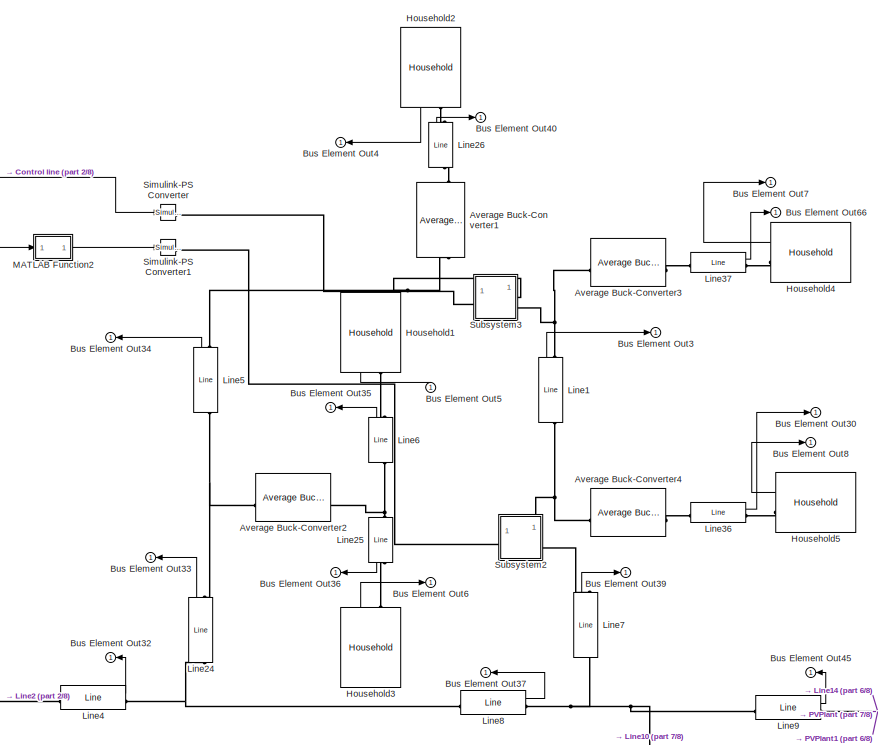
[diagram: root canvas - part 1/8, top center region]
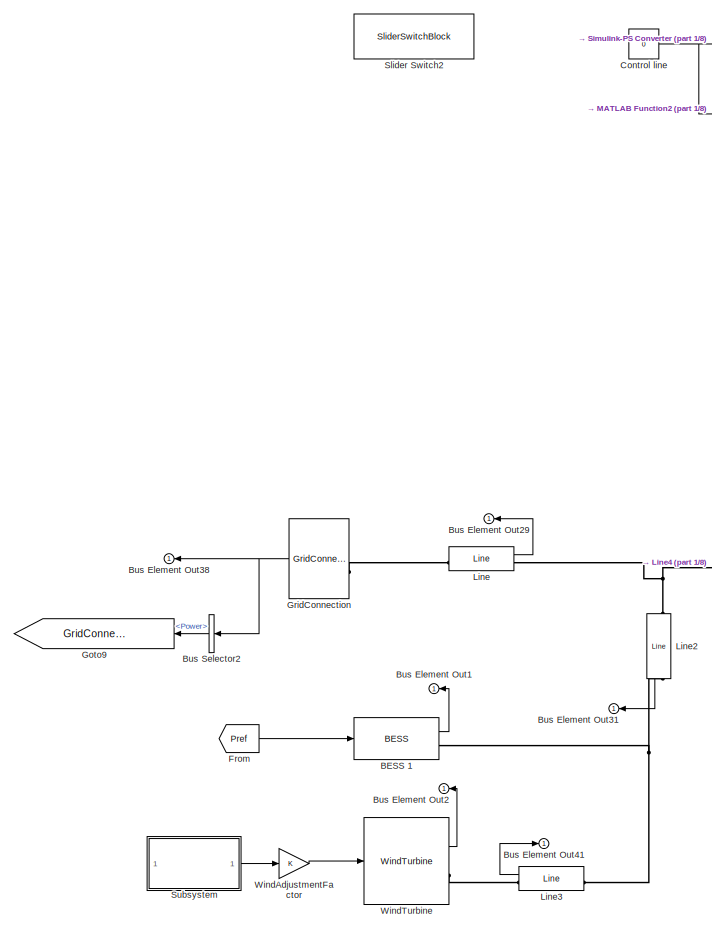
[diagram: root canvas - part 2/8, central region]
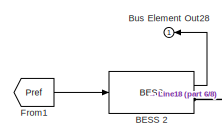
[diagram: root canvas - part 3/8, top right region]
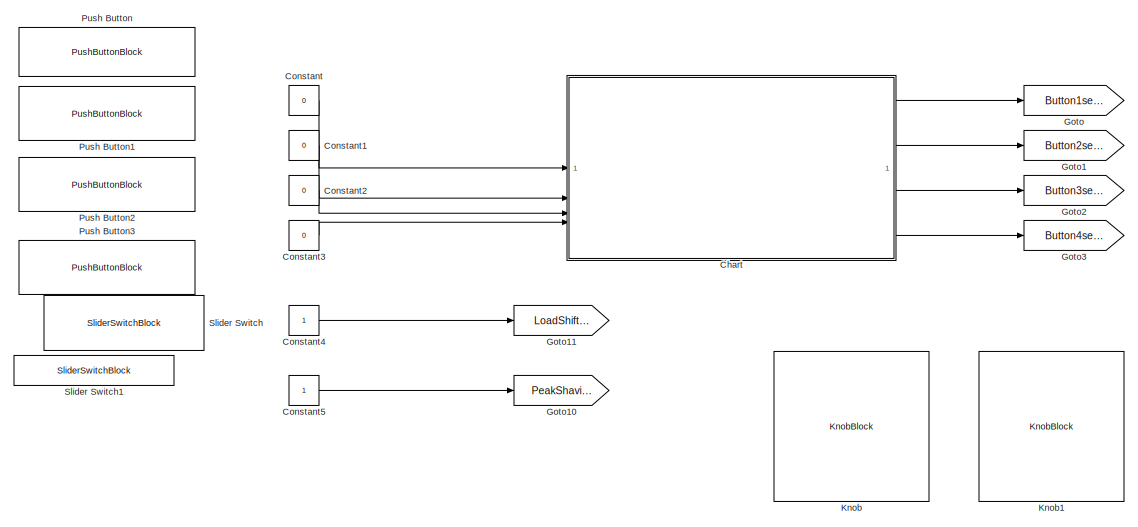
[diagram: root canvas - part 4/8, top left region]
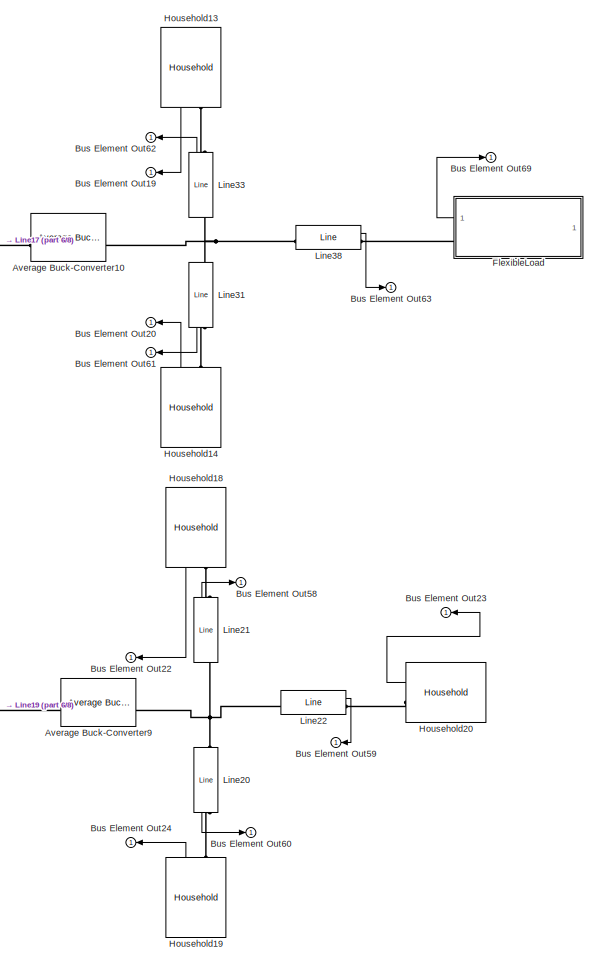
[diagram: root canvas - part 5/8, middle right region]
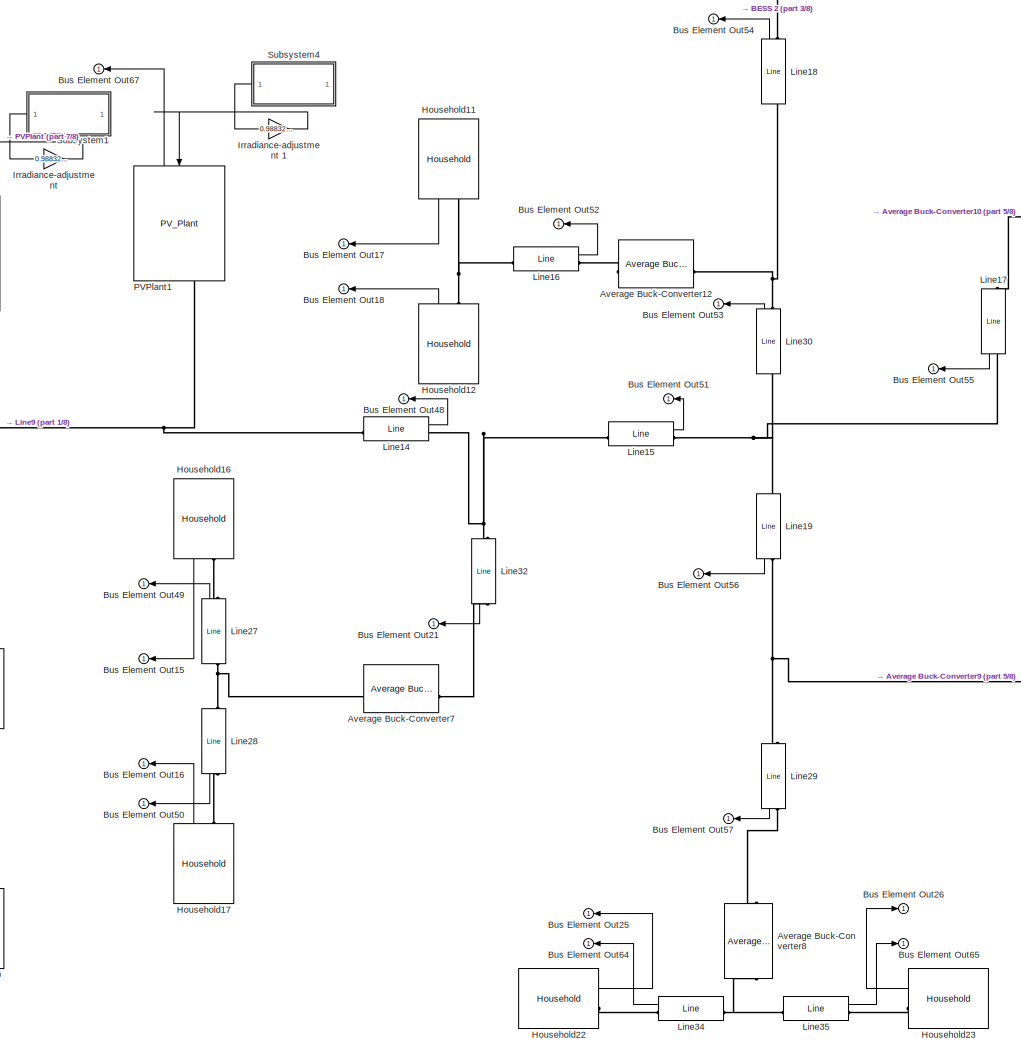
[diagram: root canvas - part 6/8, middle right region]
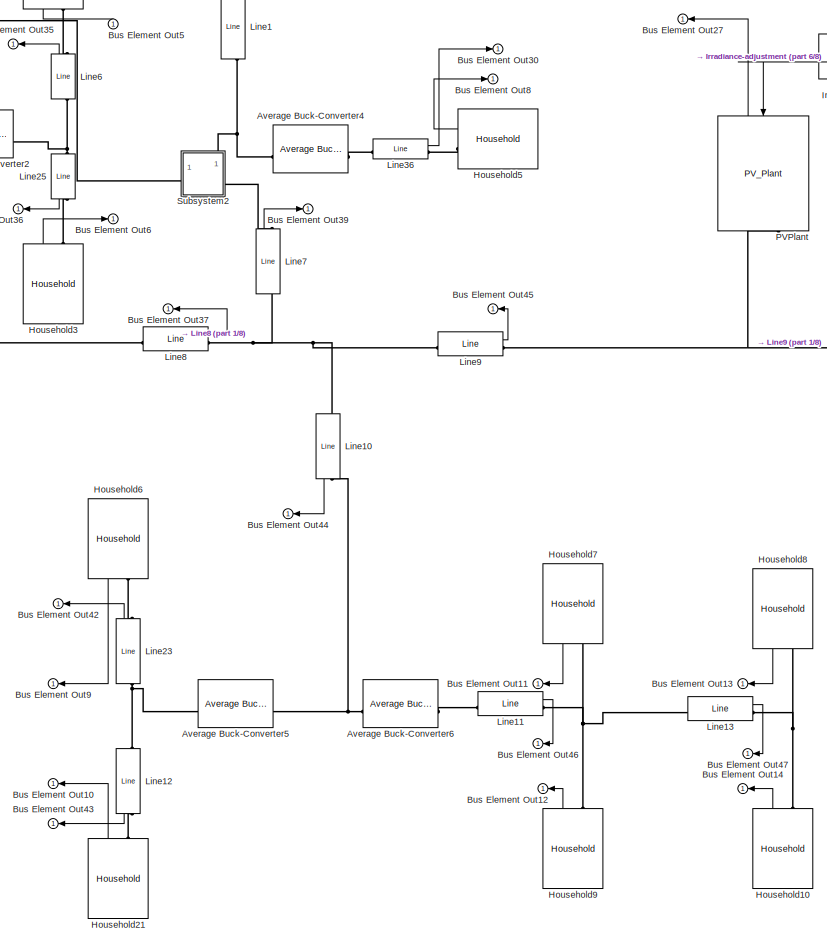
[diagram: root canvas - part 7/8, central region]
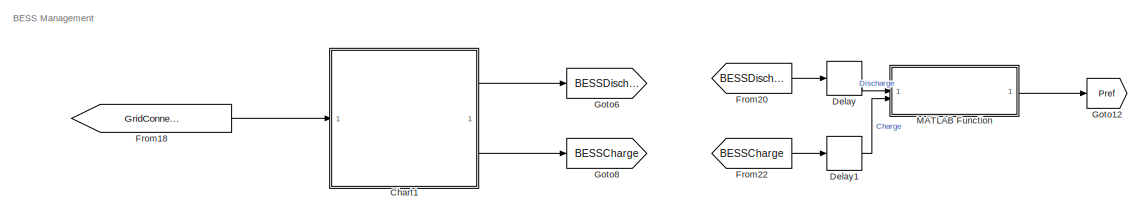
[diagram: root canvas - part 8/8, bottom center region]
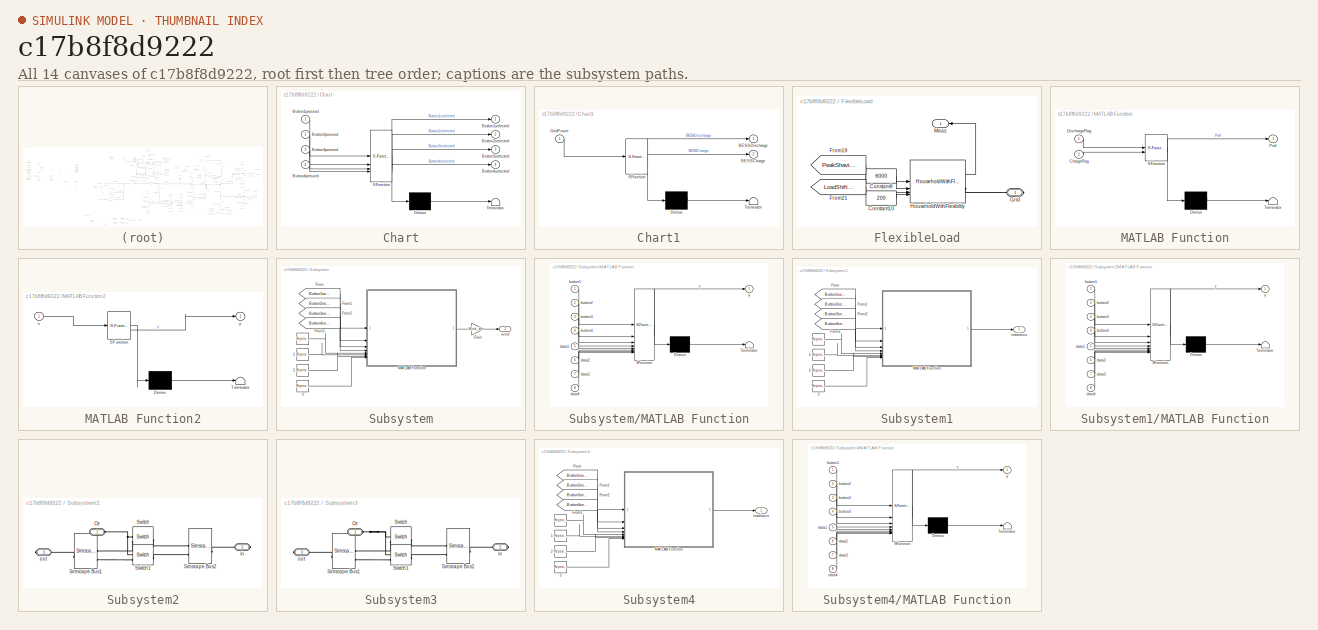
[diagram: thumbnail index - all 14 canvases of the model, root first then tree order]
MODEL slx_c17b8f8d9222
KIND model
CONFIG AbsTol = auto
CONFIG EnableMultiTasking = off
CONFIG FixedStep = 0.01
CONFIG MaxStep = auto
CONFIG MinStep = auto
CONFIG RelTol = 1e-3
CONFIG SampleTimeConstraint = Unconstrained
CONFIG SolverName = FixedStepAuto
CONFIG StartTime = 0.0
CONFIG StopTime = 48*2
BLOCK [Reference] Average Buck-Converter1  REF=DC_GRIDSIM_LIB/Average Buck-Converter
  NameLocation = right
  SourceBlock = DC_GRIDSIM_LIB/Average Buck-Converter
  SourceProductName = DC GRIDSIM Library
BLOCK [Reference] Average Buck-Converter10  REF=DC_GRIDSIM_LIB/Average Buck-Converter
  SourceBlock = DC_GRIDSIM_LIB/Average Buck-Converter
  SourceProductName = DC GRIDSIM Library
BLOCK [Reference] Average Buck-Converter12  REF=DC_GRIDSIM_LIB/Average Buck-Converter
  NameLocation = top
  SourceBlock = DC_GRIDSIM_LIB/Average Buck-Converter
  SourceProductName = DC GRIDSIM Library
BLOCK [Reference] Average Buck-Converter2  REF=DC_GRIDSIM_LIB/Average Buck-Converter
  SourceBlock = DC_GRIDSIM_LIB/Average Buck-Converter
  SourceProductName = DC GRIDSIM Library
BLOCK [Reference] Average Buck-Converter3  REF=DC_GRIDSIM_LIB/Average Buck-Converter
  SourceBlock = DC_GRIDSIM_LIB/Average Buck-Converter
  SourceProductName = DC GRIDSIM Library
BLOCK [Reference] Average Buck-Converter4  REF=DC_GRIDSIM_LIB/Average Buck-Converter
  SourceBlock = DC_GRIDSIM_LIB/Average Buck-Converter
  SourceProductName = DC GRIDSIM Library
BLOCK [Reference] Average Buck-Converter5  REF=DC_GRIDSIM_LIB/Average Buck-Converter
  NameLocation = top
  SourceBlock = DC_GRIDSIM_LIB/Average Buck-Converter
  SourceProductName = DC GRIDSIM Library
BLOCK [Reference] Average Buck-Converter6  REF=DC_GRIDSIM_LIB/Average Buck-Converter
  SourceBlock = DC_GRIDSIM_LIB/Average Buck-Converter
  SourceProductName = DC GRIDSIM Library
BLOCK [Reference] Average Buck-Converter7  REF=DC_GRIDSIM_LIB/Average Buck-Converter
  NameLocation = top
  SourceBlock = DC_GRIDSIM_LIB/Average Buck-Converter
  SourceProductName = DC GRIDSIM Library
BLOCK [Reference] Average Buck-Converter8  REF=DC_GRIDSIM_LIB/Average Buck-Converter
  NameLocation = left
  SourceBlock = DC_GRIDSIM_LIB/Average Buck-Converter
  SourceProductName = DC GRIDSIM Library
BLOCK [Reference] Average Buck-Converter9  REF=DC_GRIDSIM_LIB/Average Buck-Converter
  SourceBlock = DC_GRIDSIM_LIB/Average Buck-Converter
  SourceProductName = DC GRIDSIM Library
BLOCK [Reference] BESS 1  REF=DC_GRIDSIM_LIB/BESS
  SourceBlock = DC_GRIDSIM_LIB/BESS
  SourceProductName = DC GRIDSIM Library
BLOCK [Reference] BESS 2  REF=DC_GRIDSIM_LIB/BESS
  SourceBlock = DC_GRIDSIM_LIB/BESS
  SourceProductName = DC GRIDSIM Library
BLOCK [Outport] Bus Element Out1
  NameLocation = top
BLOCK [Outport] Bus Element Out10
  NameLocation = top
BLOCK [Outport] Bus Element Out11
  NameLocation = top
BLOCK [Outport] Bus Element Out12
  NameLocation = top
BLOCK [Outport] Bus Element Out13
  NameLocation = top
BLOCK [Outport] Bus Element Out14
  NameLocation = top
BLOCK [Outport] Bus Element Out15
  NameLocation = top
BLOCK [Outport] Bus Element Out16
  NameLocation = top
BLOCK [Outport] Bus Element Out17
  NameLocation = top
BLOCK [Outport] Bus Element Out18
  NameLocation = top
BLOCK [Outport] Bus Element Out19
  NameLocation = top
BLOCK [Outport] Bus Element Out2
  NameLocation = top
BLOCK [Outport] Bus Element Out20
  NameLocation = top
BLOCK [Outport] Bus Element Out21
  NameLocation = top
BLOCK [Outport] Bus Element Out22
  NameLocation = top
BLOCK [Outport] Bus Element Out23
  NameLocation = top
BLOCK [Outport] Bus Element Out24
  NameLocation = top
BLOCK [Outport] Bus Element Out25
  NameLocation = top
BLOCK [Outport] Bus Element Out26
BLOCK [Outport] Bus Element Out27
  NameLocation = top
BLOCK [Outport] Bus Element Out28
  NameLocation = top
BLOCK [Outport] Bus Element Out29
  NameLocation = top
BLOCK [Outport] Bus Element Out3
BLOCK [Outport] Bus Element Out30
BLOCK [Outport] Bus Element Out31
  NameLocation = top
BLOCK [Outport] Bus Element Out32
  NameLocation = top
BLOCK [Outport] Bus Element Out33
  NameLocation = top
BLOCK [Outport] Bus Element Out34
  NameLocation = top
BLOCK [Outport] Bus Element Out35
  NameLocation = top
BLOCK [Outport] Bus Element Out36
  NameLocation = top
BLOCK [Outport] Bus Element Out37
  NameLocation = top
BLOCK [Outport] Bus Element Out38
  NameLocation = top
BLOCK [Outport] Bus Element Out39
BLOCK [Outport] Bus Element Out4
  NameLocation = top
BLOCK [Outport] Bus Element Out40
BLOCK [Outport] Bus Element Out41
BLOCK [Outport] Bus Element Out42
  NameLocation = top
BLOCK [Outport] Bus Element Out43
  NameLocation = top
BLOCK [Outport] Bus Element Out44
  NameLocation = top
BLOCK [Outport] Bus Element Out45
  NameLocation = top
BLOCK [Outport] Bus Element Out46
  NameLocation = top
BLOCK [Outport] Bus Element Out47
  NameLocation = top
BLOCK [Outport] Bus Element Out48
  NameLocation = top
BLOCK [Outport] Bus Element Out49
  NameLocation = top
BLOCK [Outport] Bus Element Out5
BLOCK [Outport] Bus Element Out50
  NameLocation = top
BLOCK [Outport] Bus Element Out51
  NameLocation = top
BLOCK [Outport] Bus Element Out52
  NameLocation = top
BLOCK [Outport] Bus Element Out53
  NameLocation = top
BLOCK [Outport] Bus Element Out54
  NameLocation = top
BLOCK [Outport] Bus Element Out55
  NameLocation = top
BLOCK [Outport] Bus Element Out56
  NameLocation = top
BLOCK [Outport] Bus Element Out57
  NameLocation = top
BLOCK [Outport] Bus Element Out58
BLOCK [Outport] Bus Element Out59
  NameLocation = top
BLOCK [Outport] Bus Element Out6
BLOCK [Outport] Bus Element Out60
BLOCK [Outport] Bus Element Out61
  NameLocation = top
BLOCK [Outport] Bus Element Out62
  NameLocation = top
BLOCK [Outport] Bus Element Out63
BLOCK [Outport] Bus Element Out64
  NameLocation = top
BLOCK [Outport] Bus Element Out65
BLOCK [Outport] Bus Element Out66
BLOCK [Outport] Bus Element Out67
  NameLocation = top
BLOCK [Outport] Bus Element Out69
BLOCK [Outport] Bus Element Out7
BLOCK [Outport] Bus Element Out8
BLOCK [Outport] Bus Element Out9
  NameLocation = top
BLOCK [BusSelector] Bus Selector2
  NameLocation = top
  OutputSignals = Power
BLOCK [SubSystem] Chart
  ErrorFcn = Stateflow.Translate.translate
  PermitHierarchicalResolution = ExplicitOnly
  SFBlockType = Chart
  TreatAsAtomicUnit = on
BLOCK [Outport] Chart/ Button1selected
BLOCK [Outport] Chart/ Button2selected
  Port = 2
BLOCK [Outport] Chart/ Button3selected
  Port = 3
BLOCK [Outport] Chart/ Button4selected
  Port = 4
BLOCK [Demux] Chart/ Demux 
  Outputs = 1
BLOCK [S-Function] Chart/ SFunction 
  EnableBusSupport = on
  FunctionName = sf_sfun
  PortCounts = [4 5]
  SFcnIsStateOwnerBlock = off
  SFunctionDeploymentMode = off
  Tag = Stateflow S-Function 4
BLOCK [Terminator] Chart/ Terminator 
BLOCK [Inport] Chart/Button1pressed
BLOCK [Inport] Chart/Button2pressed
  Port = 2
BLOCK [Inport] Chart/Button3pressed
  Port = 3
BLOCK [Inport] Chart/Button4pressed
  Port = 4
BLOCK [SubSystem] Chart1
  ErrorFcn = Stateflow.Translate.translate
  PermitHierarchicalResolution = ExplicitOnly
  SFBlockType = Chart
  TreatAsAtomicUnit = on
BLOCK [Demux] Chart1/ Demux 
  Outputs = 1
BLOCK [S-Function] Chart1/ SFunction 
  EnableBusSupport = on
  FunctionName = sf_sfun
  Parameters = LowLoadP,PeakShP
  PortCounts = [1 3]
  SFcnIsStateOwnerBlock = off
  SFunctionDeploymentMode = off
  Tag = Stateflow S-Function 3
BLOCK [Terminator] Chart1/ Terminator 
BLOCK [Outport] Chart1/BESSCharge
  Port = 2
BLOCK [Outport] Chart1/BESSDischarge
BLOCK [Inport] Chart1/GridPower
BLOCK [Constant] Constant
  OutDataTypeStr = boolean
  Value = 0
BLOCK [Constant] Constant1
  OutDataTypeStr = boolean
  Value = 0
BLOCK [Constant] Constant2
  OutDataTypeStr = boolean
  Value = 0
BLOCK [Constant] Constant3
  OutDataTypeStr = boolean
  Value = 0
BLOCK [Constant] Constant4
BLOCK [Constant] Constant5
BLOCK [Constant] Control line
  Value = 0
BLOCK [Delay] Delay
  DelayLength = 1
  InputPortMap = u0
BLOCK [Delay] Delay1
  DelayLength = 1
  InputPortMap = u0
BLOCK [SubSystem] FlexibleLoad
  NameLocation = top
BLOCK [Constant] FlexibleLoad/Constant10
  Value = 200
BLOCK [Constant] FlexibleLoad/Constant9
  Value = 6000
BLOCK [From] FlexibleLoad/From19
  GotoTag = PeakShaving
  TagVisibility = global
BLOCK [From] FlexibleLoad/From21
  GotoTag = LoadShifting
  TagVisibility = global
BLOCK [PMIOPort] FlexibleLoad/Grid
  Side = Right
BLOCK [Reference] FlexibleLoad/HouseholdWithFlexibility  REF=DC_GRIDSIM_LIB/HouseholdWithFlexibility
  SourceBlock = DC_GRIDSIM_LIB/HouseholdWithFlexibility
  SourceProductName = DC GRIDSIM Library
BLOCK [Outport] FlexibleLoad/Meas
BLOCK [From] From
  GotoTag = Pref
  TagVisibility = global
BLOCK [From] From1
  GotoTag = Pref
  TagVisibility = global
BLOCK [From] From18
  GotoTag = GridConnection_Power
  TagVisibility = global
BLOCK [From] From20
  GotoTag = BESSDischarge
  TagVisibility = global
BLOCK [From] From22
  GotoTag = BESSCharge
  TagVisibility = global
BLOCK [Goto] Goto
  GotoTag = Button1selected
  TagVisibility = global
BLOCK [Goto] Goto1
  GotoTag = Button2selected
  TagVisibility = global
BLOCK [Goto] Goto10
  GotoTag = PeakShaving
  TagVisibility = global
BLOCK [Goto] Goto11
  GotoTag = LoadShifting
  TagVisibility = global
BLOCK [Goto] Goto12
  GotoTag = Pref
  TagVisibility = global
BLOCK [Goto] Goto2
  GotoTag = Button3selected
  TagVisibility = global
BLOCK [Goto] Goto3
  GotoTag = Button4selected
  TagVisibility = global
BLOCK [Goto] Goto6
  GotoTag = BESSDischarge
  TagVisibility = global
BLOCK [Goto] Goto8
  GotoTag = BESSCharge
  TagVisibility = global
BLOCK [Goto] Goto9
  GotoTag = GridConnection_Power
  NameLocation = top
  TagVisibility = global
BLOCK [Reference] GridConnection  REF=DC_GRIDSIM_LIB/GridConnection
  SourceBlock = DC_GRIDSIM_LIB/GridConnection
  SourceProductName = DC GRIDSIM Library
BLOCK [Reference] Household1  REF=DC_GRIDSIM_LIB/Household
  NameLocation = left
  SourceBlock = DC_GRIDSIM_LIB/Household
  SourceProductName = DC GRIDSIM Library
BLOCK [Reference] Household10  REF=DC_GRIDSIM_LIB/Household
  NameLocation = right
  SourceBlock = DC_GRIDSIM_LIB/Household
  SourceProductName = DC GRIDSIM Library
BLOCK [Reference] Household11  REF=DC_GRIDSIM_LIB/Household
  NameLocation = left
  SourceBlock = DC_GRIDSIM_LIB/Household
  SourceProductName = DC GRIDSIM Library
BLOCK [Reference] Household12  REF=DC_GRIDSIM_LIB/Household
  NameLocation = right
  SourceBlock = DC_GRIDSIM_LIB/Household
  SourceProductName = DC GRIDSIM Library
BLOCK [Reference] Household13  REF=DC_GRIDSIM_LIB/Household
  NameLocation = left
  SourceBlock = DC_GRIDSIM_LIB/Household
  SourceProductName = DC GRIDSIM Library
BLOCK [Reference] Household14  REF=DC_GRIDSIM_LIB/Household
  NameLocation = right
  SourceBlock = DC_GRIDSIM_LIB/Household
  SourceProductName = DC GRIDSIM Library
BLOCK [Reference] Household16  REF=DC_GRIDSIM_LIB/Household
  NameLocation = left
  SourceBlock = DC_GRIDSIM_LIB/Household
  SourceProductName = DC GRIDSIM Library
BLOCK [Reference] Household17  REF=DC_GRIDSIM_LIB/Household
  NameLocation = right
  SourceBlock = DC_GRIDSIM_LIB/Household
  SourceProductName = DC GRIDSIM Library
BLOCK [Reference] Household18  REF=DC_GRIDSIM_LIB/Household
  NameLocation = left
  SourceBlock = DC_GRIDSIM_LIB/Household
  SourceProductName = DC GRIDSIM Library
BLOCK [Reference] Household19  REF=DC_GRIDSIM_LIB/Household
  NameLocation = right
  SourceBlock = DC_GRIDSIM_LIB/Household
  SourceProductName = DC GRIDSIM Library
BLOCK [Reference] Household2  REF=DC_GRIDSIM_LIB/Household
  NameLocation = left
  SourceBlock = DC_GRIDSIM_LIB/Household
  SourceProductName = DC GRIDSIM Library
BLOCK [Reference] Household20  REF=DC_GRIDSIM_LIB/Household
  NameLocation = top
  SourceBlock = DC_GRIDSIM_LIB/Household
  SourceProductName = DC GRIDSIM Library
BLOCK [Reference] Household21  REF=DC_GRIDSIM_LIB/Household
  NameLocation = right
  SourceBlock = DC_GRIDSIM_LIB/Household
  SourceProductName = DC GRIDSIM Library
BLOCK [Reference] Household22  REF=DC_GRIDSIM_LIB/Household
  SourceBlock = DC_GRIDSIM_LIB/Household
  SourceProductName = DC GRIDSIM Library
BLOCK [Reference] Household23  REF=DC_GRIDSIM_LIB/Household
  NameLocation = top
  SourceBlock = DC_GRIDSIM_LIB/Household
  SourceProductName = DC GRIDSIM Library
BLOCK [Reference] Household3  REF=DC_GRIDSIM_LIB/Household
  NameLocation = right
  SourceBlock = DC_GRIDSIM_LIB/Household
  SourceProductName = DC GRIDSIM Library
BLOCK [Reference] Household4  REF=DC_GRIDSIM_LIB/Household
  NameLocation = top
  SourceBlock = DC_GRIDSIM_LIB/Household
  SourceProductName = DC GRIDSIM Library
BLOCK [Reference] Household5  REF=DC_GRIDSIM_LIB/Household
  NameLocation = top
  SourceBlock = DC_GRIDSIM_LIB/Household
  SourceProductName = DC GRIDSIM Library
BLOCK [Reference] Household6  REF=DC_GRIDSIM_LIB/Household
  NameLocation = left
  SourceBlock = DC_GRIDSIM_LIB/Household
  SourceProductName = DC GRIDSIM Library
BLOCK [Reference] Household7  REF=DC_GRIDSIM_LIB/Household
  NameLocation = left
  SourceBlock = DC_GRIDSIM_LIB/Household
  SourceProductName = DC GRIDSIM Library
BLOCK [Reference] Household8  REF=DC_GRIDSIM_LIB/Household
  NameLocation = left
  SourceBlock = DC_GRIDSIM_LIB/Household
  SourceProductName = DC GRIDSIM Library
BLOCK [Reference] Household9  REF=DC_GRIDSIM_LIB/Household
  NameLocation = right
  SourceBlock = DC_GRIDSIM_LIB/Household
  SourceProductName = DC GRIDSIM Library
BLOCK [Gain] Irradiance-adjustment 
  Gain = 0.9883216814160616
BLOCK [Gain] Irradiance-adjustment 1
  Gain = 0.9883216814160616
BLOCK [KnobBlock] Knob
  ScaleMax = 3
  ScaleMin = 0.9
  TickInterval = 0.1
BLOCK [KnobBlock] Knob1
  ScaleMax = 3
  ScaleMin = 0.9
  TickInterval = 0.1
BLOCK [Reference] Line  REF=DC_GRIDSIM_LIB/Line
  SourceBlock = DC_GRIDSIM_LIB/Line
  SourceProductName = DC GRIDSIM Library
BLOCK [Reference] Line1  REF=DC_GRIDSIM_LIB/Line
  NameLocation = right
  SourceBlock = DC_GRIDSIM_LIB/Line
  SourceProductName = DC GRIDSIM Library
BLOCK [Reference] Line10  REF=DC_GRIDSIM_LIB/Line
  NameLocation = left
  SourceBlock = DC_GRIDSIM_LIB/Line
  SourceProductName = DC GRIDSIM Library
BLOCK [Reference] Line11  REF=DC_GRIDSIM_LIB/Line
  SourceBlock = DC_GRIDSIM_LIB/Line
  SourceProductName = DC GRIDSIM Library
BLOCK [Reference] Line12  REF=DC_GRIDSIM_LIB/Line
  NameLocation = left
  SourceBlock = DC_GRIDSIM_LIB/Line
  SourceProductName = DC GRIDSIM Library
BLOCK [Reference] Line13  REF=DC_GRIDSIM_LIB/Line
  SourceBlock = DC_GRIDSIM_LIB/Line
  SourceProductName = DC GRIDSIM Library
BLOCK [Reference] Line14  REF=DC_GRIDSIM_LIB/Line
  SourceBlock = DC_GRIDSIM_LIB/Line
  SourceProductName = DC GRIDSIM Library
BLOCK [Reference] Line15  REF=DC_GRIDSIM_LIB/Line
  SourceBlock = DC_GRIDSIM_LIB/Line
  SourceProductName = DC GRIDSIM Library
BLOCK [Reference] Line16  REF=DC_GRIDSIM_LIB/Line
  SourceBlock = DC_GRIDSIM_LIB/Line
  SourceProductName = DC GRIDSIM Library
BLOCK [Reference] Line17  REF=DC_GRIDSIM_LIB/Line
  NameLocation = left
  SourceBlock = DC_GRIDSIM_LIB/Line
  SourceProductName = DC GRIDSIM Library
BLOCK [Reference] Line18  REF=DC_GRIDSIM_LIB/Line
  NameLocation = right
  SourceBlock = DC_GRIDSIM_LIB/Line
  SourceProductName = DC GRIDSIM Library
BLOCK [Reference] Line19  REF=DC_GRIDSIM_LIB/Line
  NameLocation = left
  SourceBlock = DC_GRIDSIM_LIB/Line
  SourceProductName = DC GRIDSIM Library
BLOCK [Reference] Line2  REF=DC_GRIDSIM_LIB/Line
  NameLocation = left
  SourceBlock = DC_GRIDSIM_LIB/Line
  SourceProductName = DC GRIDSIM Library
BLOCK [Reference] Line20  REF=DC_GRIDSIM_LIB/Line
  NameLocation = left
  SourceBlock = DC_GRIDSIM_LIB/Line
  SourceProductName = DC GRIDSIM Library
BLOCK [Reference] Line21  REF=DC_GRIDSIM_LIB/Line
  NameLocation = right
  SourceBlock = DC_GRIDSIM_LIB/Line
  SourceProductName = DC GRIDSIM Library
BLOCK [Reference] Line22  REF=DC_GRIDSIM_LIB/Line
  SourceBlock = DC_GRIDSIM_LIB/Line
  SourceProductName = DC GRIDSIM Library
BLOCK [Reference] Line23  REF=DC_GRIDSIM_LIB/Line
  NameLocation = right
  SourceBlock = DC_GRIDSIM_LIB/Line
  SourceProductName = DC GRIDSIM Library
BLOCK [Reference] Line24  REF=DC_GRIDSIM_LIB/Line
  NameLocation = right
  SourceBlock = DC_GRIDSIM_LIB/Line
  SourceProductName = DC GRIDSIM Library
BLOCK [Reference] Line25  REF=DC_GRIDSIM_LIB/Line
  NameLocation = left
  SourceBlock = DC_GRIDSIM_LIB/Line
  SourceProductName = DC GRIDSIM Library
BLOCK [Reference] Line26  REF=DC_GRIDSIM_LIB/Line
  NameLocation = right
  SourceBlock = DC_GRIDSIM_LIB/Line
  SourceProductName = DC GRIDSIM Library
BLOCK [Reference] Line27  REF=DC_GRIDSIM_LIB/Line
  NameLocation = right
  SourceBlock = DC_GRIDSIM_LIB/Line
  SourceProductName = DC GRIDSIM Library
BLOCK [Reference] Line28  REF=DC_GRIDSIM_LIB/Line
  NameLocation = left
  SourceBlock = DC_GRIDSIM_LIB/Line
  SourceProductName = DC GRIDSIM Library
BLOCK [Reference] Line29  REF=DC_GRIDSIM_LIB/Line
  NameLocation = left
  SourceBlock = DC_GRIDSIM_LIB/Line
  SourceProductName = DC GRIDSIM Library
BLOCK [Reference] Line3  REF=DC_GRIDSIM_LIB/Line
  NameLocation = top
  SourceBlock = DC_GRIDSIM_LIB/Line
  SourceProductName = DC GRIDSIM Library
BLOCK [Reference] Line30  REF=DC_GRIDSIM_LIB/Line
  NameLocation = right
  SourceBlock = DC_GRIDSIM_LIB/Line
  SourceProductName = DC GRIDSIM Library
BLOCK [Reference] Line31  REF=DC_GRIDSIM_LIB/Line
  NameLocation = left
  SourceBlock = DC_GRIDSIM_LIB/Line
  SourceProductName = DC GRIDSIM Library
BLOCK [Reference] Line32  REF=DC_GRIDSIM_LIB/Line
  NameLocation = left
  SourceBlock = DC_GRIDSIM_LIB/Line
  SourceProductName = DC GRIDSIM Library
BLOCK [Reference] Line33  REF=DC_GRIDSIM_LIB/Line
  NameLocation = right
  SourceBlock = DC_GRIDSIM_LIB/Line
  SourceProductName = DC GRIDSIM Library
BLOCK [Reference] Line34  REF=DC_GRIDSIM_LIB/Line
  NameLocation = top
  SourceBlock = DC_GRIDSIM_LIB/Line
  SourceProductName = DC GRIDSIM Library
BLOCK [Reference] Line35  REF=DC_GRIDSIM_LIB/Line
  SourceBlock = DC_GRIDSIM_LIB/Line
  SourceProductName = DC GRIDSIM Library
BLOCK [Reference] Line36  REF=DC_GRIDSIM_LIB/Line
  SourceBlock = DC_GRIDSIM_LIB/Line
  SourceProductName = DC GRIDSIM Library
BLOCK [Reference] Line37  REF=DC_GRIDSIM_LIB/Line
  SourceBlock = DC_GRIDSIM_LIB/Line
  SourceProductName = DC GRIDSIM Library
BLOCK [Reference] Line38  REF=DC_GRIDSIM_LIB/Line
  SourceBlock = DC_GRIDSIM_LIB/Line
  SourceProductName = DC GRIDSIM Library
BLOCK [Reference] Line4  REF=DC_GRIDSIM_LIB/Line
  SourceBlock = DC_GRIDSIM_LIB/Line
  SourceProductName = DC GRIDSIM Library
BLOCK [Reference] Line5  REF=DC_GRIDSIM_LIB/Line
  NameLocation = right
  SourceBlock = DC_GRIDSIM_LIB/Line
  SourceProductName = DC GRIDSIM Library
BLOCK [Reference] Line6  REF=DC_GRIDSIM_LIB/Line
  NameLocation = right
  SourceBlock = DC_GRIDSIM_LIB/Line
  SourceProductName = DC GRIDSIM Library
BLOCK [Reference] Line7  REF=DC_GRIDSIM_LIB/Line
  NameLocation = right
  SourceBlock = DC_GRIDSIM_LIB/Line
  SourceProductName = DC GRIDSIM Library
BLOCK [Reference] Line8  REF=DC_GRIDSIM_LIB/Line
  SourceBlock = DC_GRIDSIM_LIB/Line
  SourceProductName = DC GRIDSIM Library
BLOCK [Reference] Line9  REF=DC_GRIDSIM_LIB/Line
  SourceBlock = DC_GRIDSIM_LIB/Line
  SourceProductName = DC GRIDSIM Library
BLOCK [SubSystem] MATLAB Function
  ErrorFcn = Stateflow.Translate.translate
  LibrarySourceBlock = simulink/User-Defined\nFunctions/MATLAB Function
  PermitHierarchicalResolution = ExplicitOnly
  SFBlockType = MATLAB Function
  TreatAsAtomicUnit = on
BLOCK [Demux] MATLAB Function/ Demux 
  Outputs = 1
BLOCK [S-Function] MATLAB Function/ SFunction 
  EnableBusSupport = on
  FunctionName = sf_sfun
  PortCounts = [2 2]
  SFcnIsStateOwnerBlock = off
  SFunctionDeploymentMode = off
  Tag = Stateflow S-Function 1
BLOCK [Terminator] MATLAB Function/ Terminator 
BLOCK [Inport] MATLAB Function/ChargeFlag
  Port = 2
BLOCK [Inport] MATLAB Function/DischargeFlag
BLOCK [Outport] MATLAB Function/Pref
BLOCK [SubSystem] MATLAB Function2
  ErrorFcn = Stateflow.Translate.translate
  LibrarySourceBlock = simulink/User-Defined\nFunctions/MATLAB Function
  PermitHierarchicalResolution = ExplicitOnly
  SFBlockType = MATLAB Function
  TreatAsAtomicUnit = on
BLOCK [Demux] MATLAB Function2/ Demux 
  Outputs = 1
BLOCK [S-Function] MATLAB Function2/ SFunction 
  EnableBusSupport = on
  FunctionName = sf_sfun
  PortCounts = [1 2]
  SFcnIsStateOwnerBlock = off
  SFunctionDeploymentMode = off
  Tag = Stateflow S-Function 6
BLOCK [Terminator] MATLAB Function2/ Terminator 
BLOCK [Inport] MATLAB Function2/u
BLOCK [Outport] MATLAB Function2/y
BLOCK [Reference] PVPlant  REF=DC_GRIDSIM_LIB/PV_Plant
  NameLocation = right
  SourceBlock = DC_GRIDSIM_LIB/PV_Plant
  SourceProductName = DC GRIDSIM Library
BLOCK [Reference] PVPlant1  REF=DC_GRIDSIM_LIB/PV_Plant
  NameLocation = right
  SourceBlock = DC_GRIDSIM_LIB/PV_Plant
  SourceProductName = DC GRIDSIM Library
BLOCK [PushButtonBlock] Push Button
  ButtonText = Button_SpringAllday
  OffValue = 0.000000
BLOCK [PushButtonBlock] Push Button1
  ButtonText = Button_SummerAllday
  OffValue = 0.000000
BLOCK [PushButtonBlock] Push Button2
  ButtonText = Button_AutumnAllday
  OffValue = 0.000000
BLOCK [PushButtonBlock] Push Button3
  ButtonText = Button_WinterAllday
  OffValue = 0.000000
BLOCK [Reference] Simulink-PS Converter  REF=nesl_utility/Simulink-PS
Converter
  SourceBlock = nesl_utility/Simulink-PS\nConverter
  SourceType = Simulink-PS\nConverter
BLOCK [Reference] Simulink-PS Converter1  REF=nesl_utility/Simulink-PS
Converter
  SourceBlock = nesl_utility/Simulink-PS\nConverter
  SourceType = Simulink-PS\nConverter
BLOCK [SliderSwitchBlock] Slider Switch
  LabelPosition = Hide
BLOCK [SliderSwitchBlock] Slider Switch1
  LabelPosition = Hide
BLOCK [SliderSwitchBlock] Slider Switch2
BLOCK [SubSystem] Subsystem
BLOCK [Reference] Subsystem/    REF=simulink/Sources/Repeating
Sequence
Interpolated
  NameLocation = top
  SourceBlock = simulink/Sources/Repeating\nSequence\nInterpolated
  SourceType = Repeating Sequence Interpolated
BLOCK [Reference] Subsystem/  1  REF=simulink/Sources/Repeating
Sequence
Interpolated
  NameLocation = top
  SourceBlock = simulink/Sources/Repeating\nSequence\nInterpolated
  SourceType = Repeating Sequence Interpolated
BLOCK [Reference] Subsystem/  2  REF=simulink/Sources/Repeating
Sequence
Interpolated
  NameLocation = top
  SourceBlock = simulink/Sources/Repeating\nSequence\nInterpolated
  SourceType = Repeating Sequence Interpolated
BLOCK [Reference] Subsystem/  3  REF=simulink/Sources/Repeating
Sequence
Interpolated
  NameLocation = top
  SourceBlock = simulink/Sources/Repeating\nSequence\nInterpolated
  SourceType = Repeating Sequence Interpolated
BLOCK [From] Subsystem/From
  GotoTag = Button1selected
  TagVisibility = global
BLOCK [From] Subsystem/From1
  GotoTag = Button2selected
  TagVisibility = global
BLOCK [From] Subsystem/From2
  GotoTag = Button3selected
  TagVisibility = global
BLOCK [From] Subsystem/From3
  GotoTag = Button4selected
  TagVisibility = global
BLOCK [Gain] Subsystem/Gain
  Gain = Wind_scalefactor
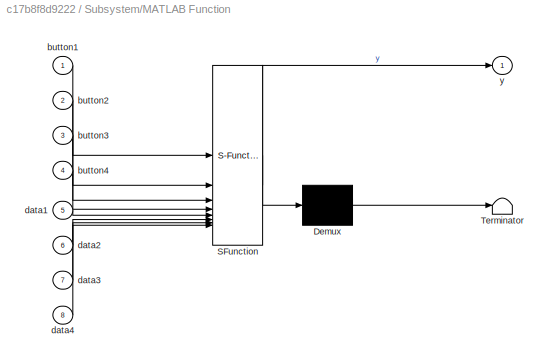
BLOCK [SubSystem] Subsystem/MATLAB Function
  ErrorFcn = Stateflow.Translate.translate
  LibrarySourceBlock = simulink/User-Defined\nFunctions/MATLAB Function
  PermitHierarchicalResolution = ExplicitOnly
  SFBlockType = MATLAB Function
  TreatAsAtomicUnit = on
BLOCK [Demux] Subsystem/MATLAB Function/ Demux 
  Outputs = 1
BLOCK [S-Function] Subsystem/MATLAB Function/ SFunction 
  EnableBusSupport = on
  FunctionName = sf_sfun
  PortCounts = [8 2]
  SFcnIsStateOwnerBlock = off
  SFunctionDeploymentMode = off
  Tag = Stateflow S-Function 2
BLOCK [Terminator] Subsystem/MATLAB Function/ Terminator 
BLOCK [Inport] Subsystem/MATLAB Function/button1
BLOCK [Inport] Subsystem/MATLAB Function/button2
  Port = 2
BLOCK [Inport] Subsystem/MATLAB Function/button3
  Port = 3
BLOCK [Inport] Subsystem/MATLAB Function/button4
  Port = 4
BLOCK [Inport] Subsystem/MATLAB Function/data1
  Port = 5
BLOCK [Inport] Subsystem/MATLAB Function/data2
  Port = 6
BLOCK [Inport] Subsystem/MATLAB Function/data3
  Port = 7
BLOCK [Inport] Subsystem/MATLAB Function/data4
  Port = 8
BLOCK [Outport] Subsystem/MATLAB Function/y
BLOCK [Outport] Subsystem/wind
BLOCK [SubSystem] Subsystem1
  NameLocation = top
BLOCK [Reference] Subsystem1/    REF=simulink/Sources/Repeating
Sequence
Interpolated
  NameLocation = top
  SourceBlock = simulink/Sources/Repeating\nSequence\nInterpolated
  SourceType = Repeating Sequence Interpolated
BLOCK [Reference] Subsystem1/  1  REF=simulink/Sources/Repeating
Sequence
Interpolated
  NameLocation = top
  SourceBlock = simulink/Sources/Repeating\nSequence\nInterpolated
  SourceType = Repeating Sequence Interpolated
BLOCK [Reference] Subsystem1/  2  REF=simulink/Sources/Repeating
Sequence
Interpolated
  NameLocation = top
  SourceBlock = simulink/Sources/Repeating\nSequence\nInterpolated
  SourceType = Repeating Sequence Interpolated
BLOCK [Reference] Subsystem1/  3  REF=simulink/Sources/Repeating
Sequence
Interpolated
  NameLocation = top
  SourceBlock = simulink/Sources/Repeating\nSequence\nInterpolated
  SourceType = Repeating Sequence Interpolated
BLOCK [From] Subsystem1/From
  GotoTag = Button1selected
  TagVisibility = global
BLOCK [From] Subsystem1/From1
  GotoTag = Button2selected
  TagVisibility = global
BLOCK [From] Subsystem1/From2
  GotoTag = Button3selected
  TagVisibility = global
BLOCK [From] Subsystem1/From3
  GotoTag = Button4selected
  TagVisibility = global
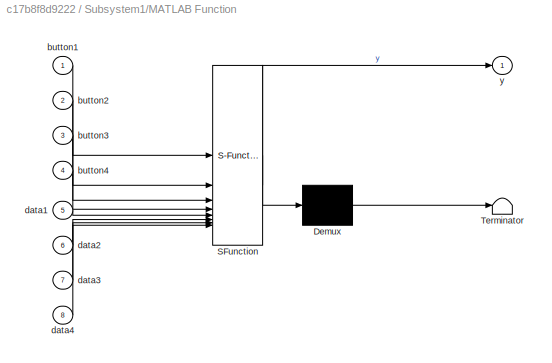
BLOCK [SubSystem] Subsystem1/MATLAB Function
  ErrorFcn = Stateflow.Translate.translate
  LibrarySourceBlock = simulink/User-Defined\nFunctions/MATLAB Function
  PermitHierarchicalResolution = ExplicitOnly
  SFBlockType = MATLAB Function
  TreatAsAtomicUnit = on
BLOCK [Demux] Subsystem1/MATLAB Function/ Demux 
  Outputs = 1
BLOCK [S-Function] Subsystem1/MATLAB Function/ SFunction 
  EnableBusSupport = on
  FunctionName = sf_sfun
  PortCounts = [8 2]
  SFcnIsStateOwnerBlock = off
  SFunctionDeploymentMode = off
  Tag = Stateflow S-Function 17
BLOCK [Terminator] Subsystem1/MATLAB Function/ Terminator 
BLOCK [Inport] Subsystem1/MATLAB Function/button1
BLOCK [Inport] Subsystem1/MATLAB Function/button2
  Port = 2
BLOCK [Inport] Subsystem1/MATLAB Function/button3
  Port = 3
BLOCK [Inport] Subsystem1/MATLAB Function/button4
  Port = 4
BLOCK [Inport] Subsystem1/MATLAB Function/data1
  Port = 5
BLOCK [Inport] Subsystem1/MATLAB Function/data2
  Port = 6
BLOCK [Inport] Subsystem1/MATLAB Function/data3
  Port = 7
BLOCK [Inport] Subsystem1/MATLAB Function/data4
  Port = 8
BLOCK [Outport] Subsystem1/MATLAB Function/y
BLOCK [Outport] Subsystem1/irradiance
BLOCK [SubSystem] Subsystem2
BLOCK [PMIOPort] Subsystem2/Ctr
  Side = Left
BLOCK [SimscapeBus] Subsystem2/Simscape Bus1
  HierarchyStrings = High;Low
  NameLocation = top
BLOCK [SimscapeBus] Subsystem2/Simscape Bus2
  HierarchyStrings = High;Low
BLOCK [Reference] Subsystem2/Switch  REF=fl_lib/Electrical/Electrical Elements/Switch
  SourceBlock = fl_lib/Electrical/Electrical Elements/Switch
  SourceType = Switch
BLOCK [Reference] Subsystem2/Switch1  REF=fl_lib/Electrical/Electrical Elements/Switch
  SourceBlock = fl_lib/Electrical/Electrical Elements/Switch
  SourceType = Switch
BLOCK [PMIOPort] Subsystem2/in
  Port = 2
  Side = Right
BLOCK [PMIOPort] Subsystem2/out
  Port = 3
  Side = Right
BLOCK [SubSystem] Subsystem3
BLOCK [PMIOPort] Subsystem3/Ctr
  Side = Left
BLOCK [SimscapeBus] Subsystem3/Simscape Bus1
  HierarchyStrings = High;Low
  NameLocation = top
BLOCK [SimscapeBus] Subsystem3/Simscape Bus2
  HierarchyStrings = High;Low
BLOCK [Reference] Subsystem3/Switch  REF=fl_lib/Electrical/Electrical Elements/Switch
  SourceBlock = fl_lib/Electrical/Electrical Elements/Switch
  SourceType = Switch
BLOCK [Reference] Subsystem3/Switch1  REF=fl_lib/Electrical/Electrical Elements/Switch
  SourceBlock = fl_lib/Electrical/Electrical Elements/Switch
  SourceType = Switch
BLOCK [PMIOPort] Subsystem3/in
  Port = 2
  Side = Right
BLOCK [PMIOPort] Subsystem3/out
  Port = 3
  Side = Right
BLOCK [SubSystem] Subsystem4
  NameLocation = top
BLOCK [Reference] Subsystem4/    REF=simulink/Sources/Repeating
Sequence
Interpolated
  NameLocation = top
  SourceBlock = simulink/Sources/Repeating\nSequence\nInterpolated
  SourceType = Repeating Sequence Interpolated
BLOCK [Reference] Subsystem4/  1  REF=simulink/Sources/Repeating
Sequence
Interpolated
  NameLocation = top
  SourceBlock = simulink/Sources/Repeating\nSequence\nInterpolated
  SourceType = Repeating Sequence Interpolated
BLOCK [Reference] Subsystem4/  2  REF=simulink/Sources/Repeating
Sequence
Interpolated
  NameLocation = top
  SourceBlock = simulink/Sources/Repeating\nSequence\nInterpolated
  SourceType = Repeating Sequence Interpolated
BLOCK [Reference] Subsystem4/  3  REF=simulink/Sources/Repeating
Sequence
Interpolated
  NameLocation = top
  SourceBlock = simulink/Sources/Repeating\nSequence\nInterpolated
  SourceType = Repeating Sequence Interpolated
BLOCK [From] Subsystem4/From
  GotoTag = Button1selected
  TagVisibility = global
BLOCK [From] Subsystem4/From1
  GotoTag = Button2selected
  TagVisibility = global
BLOCK [From] Subsystem4/From2
  GotoTag = Button3selected
  TagVisibility = global
BLOCK [From] Subsystem4/From3
  GotoTag = Button4selected
  TagVisibility = global
BLOCK [SubSystem] Subsystem4/MATLAB Function
  ErrorFcn = Stateflow.Translate.translate
  LibrarySourceBlock = simulink/User-Defined\nFunctions/MATLAB Function
  PermitHierarchicalResolution = ExplicitOnly
  SFBlockType = MATLAB Function
  TreatAsAtomicUnit = on
BLOCK [Demux] Subsystem4/MATLAB Function/ Demux 
  Outputs = 1
BLOCK [S-Function] Subsystem4/MATLAB Function/ SFunction 
  EnableBusSupport = on
  FunctionName = sf_sfun
  PortCounts = [8 2]
  SFcnIsStateOwnerBlock = off
  SFunctionDeploymentMode = off
  Tag = Stateflow S-Function 5
BLOCK [Terminator] Subsystem4/MATLAB Function/ Terminator 
BLOCK [Inport] Subsystem4/MATLAB Function/button1
BLOCK [Inport] Subsystem4/MATLAB Function/button2
  Port = 2
BLOCK [Inport] Subsystem4/MATLAB Function/button3
  Port = 3
BLOCK [Inport] Subsystem4/MATLAB Function/button4
  Port = 4
BLOCK [Inport] Subsystem4/MATLAB Function/data1
  Port = 5
BLOCK [Inport] Subsystem4/MATLAB Function/data2
  Port = 6
BLOCK [Inport] Subsystem4/MATLAB Function/data3
  Port = 7
BLOCK [Inport] Subsystem4/MATLAB Function/data4
  Port = 8
BLOCK [Outport] Subsystem4/MATLAB Function/y
BLOCK [Outport] Subsystem4/irradiance
BLOCK [Gain] WindAdjustmentFactor
BLOCK [Reference] WindTurbine  REF=DC_GRIDSIM_LIB/WindTurbine
  SourceBlock = DC_GRIDSIM_LIB/WindTurbine
  SourceProductName = DC GRIDSIM Library
  SourceType = SubSystem
ANNOTATION (root): BESS Management
LINE BESS 1:1 -> Bus Element Out1:1
LINE BESS 2:1 -> Bus Element Out28:1
LINE Bus Selector2:1 -> Goto9:1
LINE Chart1:1 -> Goto6:1
LINE Chart1:2 -> Goto8:1
LINE Chart:1 -> Goto:1
LINE Chart:2 -> Goto1:1
LINE Chart:3 -> Goto2:1
LINE Chart:4 -> Goto3:1
LINE Constant1:1 -> Chart:2
LINE Constant2:1 -> Chart:3
LINE Constant3:1 -> Chart:4
LINE Constant4:1 -> Goto11:1
LINE Constant5:1 -> Goto10:1
LINE Constant:1 -> Chart:1
NET Control line:1 -> MATLAB Function2:1, Simulink-PS Converter:1
LINE Delay1:1 -> MATLAB Function:2
LINE Delay:1 -> MATLAB Function:1
LINE FlexibleLoad/Constant10:1 -> FlexibleLoad/HouseholdWithFlexibility:4
LINE FlexibleLoad/Constant9:1 -> FlexibleLoad/HouseholdWithFlexibility:2
LINE FlexibleLoad/From19:1 -> FlexibleLoad/HouseholdWithFlexibility:1
LINE FlexibleLoad/From21:1 -> FlexibleLoad/HouseholdWithFlexibility:3
LINE FlexibleLoad/HouseholdWithFlexibility:1 -> FlexibleLoad/Meas:1
LINE FlexibleLoad:1 -> Bus Element Out69:1
LINE From18:1 -> Chart1:1
LINE From1:1 -> BESS 2:1
LINE From20:1 -> Delay:1
LINE From22:1 -> Delay1:1
LINE From:1 -> BESS 1:1
NET GridConnection:1 -> Bus Element Out38:1, Bus Selector2:1
LINE Household10:1 -> Bus Element Out14:1
LINE Household11:1 -> Bus Element Out17:1
LINE Household12:1 -> Bus Element Out18:1
LINE Household13:1 -> Bus Element Out19:1
LINE Household14:1 -> Bus Element Out20:1
LINE Household16:1 -> Bus Element Out15:1
LINE Household17:1 -> Bus Element Out16:1
LINE Household18:1 -> Bus Element Out22:1
LINE Household19:1 -> Bus Element Out24:1
LINE Household1:1 -> Bus Element Out5:1
LINE Household20:1 -> Bus Element Out23:1
LINE Household21:1 -> Bus Element Out10:1
LINE Household22:1 -> Bus Element Out25:1
LINE Household23:1 -> Bus Element Out26:1
LINE Household2:1 -> Bus Element Out4:1
LINE Household3:1 -> Bus Element Out6:1
LINE Household4:1 -> Bus Element Out7:1
LINE Household5:1 -> Bus Element Out8:1
LINE Household6:1 -> Bus Element Out9:1
LINE Household7:1 -> Bus Element Out11:1
LINE Household8:1 -> Bus Element Out13:1
LINE Household9:1 -> Bus Element Out12:1
LINE Irradiance-adjustment 1:1 -> PVPlant1:1
LINE Irradiance-adjustment :1 -> PVPlant:1
LINE Line10:1 -> Bus Element Out44:1
LINE Line11:1 -> Bus Element Out46:1
LINE Line12:1 -> Bus Element Out43:1
LINE Line13:1 -> Bus Element Out47:1
LINE Line14:1 -> Bus Element Out48:1
LINE Line15:1 -> Bus Element Out51:1
LINE Line16:1 -> Bus Element Out52:1
LINE Line17:1 -> Bus Element Out55:1
LINE Line18:1 -> Bus Element Out54:1
LINE Line19:1 -> Bus Element Out56:1
LINE Line1:1 -> Bus Element Out3:1
LINE Line20:1 -> Bus Element Out60:1
LINE Line21:1 -> Bus Element Out58:1
LINE Line22:1 -> Bus Element Out59:1
LINE Line23:1 -> Bus Element Out42:1
LINE Line24:1 -> Bus Element Out33:1
LINE Line25:1 -> Bus Element Out36:1
LINE Line26:1 -> Bus Element Out40:1
LINE Line27:1 -> Bus Element Out49:1
LINE Line28:1 -> Bus Element Out50:1
LINE Line29:1 -> Bus Element Out57:1
LINE Line2:1 -> Bus Element Out31:1
LINE Line30:1 -> Bus Element Out53:1
LINE Line31:1 -> Bus Element Out61:1
LINE Line32:1 -> Bus Element Out21:1
LINE Line33:1 -> Bus Element Out62:1
LINE Line34:1 -> Bus Element Out64:1
LINE Line35:1 -> Bus Element Out65:1
LINE Line36:1 -> Bus Element Out30:1
LINE Line37:1 -> Bus Element Out66:1
LINE Line38:1 -> Bus Element Out63:1
LINE Line3:1 -> Bus Element Out41:1
LINE Line4:1 -> Bus Element Out32:1
LINE Line5:1 -> Bus Element Out34:1
LINE Line6:1 -> Bus Element Out35:1
LINE Line7:1 -> Bus Element Out39:1
LINE Line8:1 -> Bus Element Out37:1
LINE Line9:1 -> Bus Element Out45:1
LINE Line:1 -> Bus Element Out29:1
LINE MATLAB Function2:1 -> Simulink-PS Converter1:1
LINE MATLAB Function:1 -> Goto12:1
LINE PVPlant1:1 -> Bus Element Out67:1
LINE PVPlant:1 -> Bus Element Out27:1
LINE Subsystem/  1:1 -> Subsystem/MATLAB Function:6
LINE Subsystem/  2:1 -> Subsystem/MATLAB Function:7
LINE Subsystem/  3:1 -> Subsystem/MATLAB Function:8
LINE Subsystem/  :1 -> Subsystem/MATLAB Function:5
LINE Subsystem/From1:1 -> Subsystem/MATLAB Function:2
LINE Subsystem/From2:1 -> Subsystem/MATLAB Function:3
LINE Subsystem/From3:1 -> Subsystem/MATLAB Function:4
LINE Subsystem/From:1 -> Subsystem/MATLAB Function:1
LINE Subsystem/Gain:1 -> Subsystem/wind:1
LINE Subsystem/MATLAB Function:1 -> Subsystem/Gain:1
LINE Subsystem1/  1:1 -> Subsystem1/MATLAB Function:6
LINE Subsystem1/  2:1 -> Subsystem1/MATLAB Function:7
LINE Subsystem1/  3:1 -> Subsystem1/MATLAB Function:8
LINE Subsystem1/  :1 -> Subsystem1/MATLAB Function:5
LINE Subsystem1/From1:1 -> Subsystem1/MATLAB Function:2
LINE Subsystem1/From2:1 -> Subsystem1/MATLAB Function:3
LINE Subsystem1/From3:1 -> Subsystem1/MATLAB Function:4
LINE Subsystem1/From:1 -> Subsystem1/MATLAB Function:1
LINE Subsystem1/MATLAB Function:1 -> Subsystem1/irradiance:1
LINE Subsystem1:1 -> Irradiance-adjustment :1
LINE Subsystem4/  1:1 -> Subsystem4/MATLAB Function:6
LINE Subsystem4/  2:1 -> Subsystem4/MATLAB Function:7
LINE Subsystem4/  3:1 -> Subsystem4/MATLAB Function:8
LINE Subsystem4/  :1 -> Subsystem4/MATLAB Function:5
LINE Subsystem4/From1:1 -> Subsystem4/MATLAB Function:2
LINE Subsystem4/From2:1 -> Subsystem4/MATLAB Function:3
LINE Subsystem4/From3:1 -> Subsystem4/MATLAB Function:4
LINE Subsystem4/From:1 -> Subsystem4/MATLAB Function:1
LINE Subsystem4/MATLAB Function:1 -> Subsystem4/irradiance:1
LINE Subsystem4:1 -> Irradiance-adjustment 1:1
LINE Subsystem:1 -> WindAdjustmentFactor:1
LINE WindAdjustmentFactor:1 -> WindTurbine:1
LINE WindTurbine:1 -> Bus Element Out2:1
PLINE Average Buck-Converter10:LConn1 -- Line17:LConn1
PNET net1: Average Buck-Converter10:RConn1 -- Line31:LConn1 -- Line33:LConn1 -- Line38:LConn1
PNET net2: Average Buck-Converter12:LConn1 -- Line18:LConn1 -- Line30:RConn1
PLINE Average Buck-Converter12:RConn1 -- Line16:RConn1
PNET net3: Average Buck-Converter1:LConn1 -- Line5:RConn1 -- Subsystem3:RConn1
PLINE Average Buck-Converter1:RConn1 -- Line26:LConn1
PNET net4: Average Buck-Converter2:LConn1 -- Line24:RConn1 -- Line5:LConn1
PNET net5: Average Buck-Converter2:RConn1 -- Line25:LConn1 -- Line6:LConn1
PNET net6: Average Buck-Converter3:LConn1 -- Line1:RConn1 -- Subsystem3:RConn2
PLINE Average Buck-Converter3:RConn1 -- Line37:LConn1
PNET net7: Average Buck-Converter4:LConn1 -- Line1:LConn1 -- Subsystem2:RConn1
PLINE Average Buck-Converter4:RConn1 -- Line36:LConn1
PNET net8: Average Buck-Converter5:LConn1 -- Average Buck-Converter6:LConn1 -- Line10:RConn1
PNET net9: Average Buck-Converter5:RConn1 -- Line12:LConn1 -- Line23:LConn1
PLINE Average Buck-Converter6:RConn1 -- Line11:LConn1
PLINE Average Buck-Converter7:LConn1 -- Line32:RConn1
PNET net10: Average Buck-Converter7:RConn1 -- Line27:LConn1 -- Line28:LConn1
PLINE Average Buck-Converter8:LConn1 -- Line29:RConn1
PNET net11: Average Buck-Converter8:RConn1 -- Line34:LConn1 -- Line35:LConn1
PNET net12: Average Buck-Converter9:LConn1 -- Line19:RConn1 -- Line29:LConn1
PNET net13: Average Buck-Converter9:RConn1 -- Line20:LConn1 -- Line21:LConn1 -- Line22:LConn1
PNET net14: BESS 1:RConn1 -- Line2:RConn1 -- Line3:LConn1
PLINE BESS 2:RConn1 -- Line18:RConn1
PLINE FlexibleLoad/Grid:RConn1 -- FlexibleLoad/HouseholdWithFlexibility:RConn1
PLINE FlexibleLoad:RConn1 -- Line38:RConn1
PLINE GridConnection:LConn1 -- Line:LConn1
PNET net15: Household10:RConn1 -- Household8:RConn1 -- Line13:RConn1
PNET net16: Household11:RConn1 -- Household12:RConn1 -- Line16:LConn1
PLINE Household13:RConn1 -- Line33:RConn1
PLINE Household14:RConn1 -- Line31:RConn1
PLINE Household16:RConn1 -- Line27:RConn1
PLINE Household17:RConn1 -- Line28:RConn1
PLINE Household18:RConn1 -- Line21:RConn1
PLINE Household19:RConn1 -- Line20:RConn1
PLINE Household1:RConn1 -- Line6:RConn1
PLINE Household20:RConn1 -- Line22:RConn1
PLINE Household21:RConn1 -- Line12:RConn1
PLINE Household22:RConn1 -- Line34:RConn1
PLINE Household23:RConn1 -- Line35:RConn1
PLINE Household2:RConn1 -- Line26:RConn1
PLINE Household3:RConn1 -- Line25:RConn1
PLINE Household4:RConn1 -- Line37:RConn1
PLINE Household5:RConn1 -- Line36:RConn1
PLINE Household6:RConn1 -- Line23:RConn1
PNET net17: Household7:RConn1 -- Household9:RConn1 -- Line11:RConn1 -- Line13:LConn1
PNET net18: Line10:LConn1 -- Line7:LConn1 -- Line8:RConn1 -- Line9:LConn1
PNET net19: Line14:LConn1 -- Line9:RConn1 -- PVPlant1:RConn1 -- PVPlant:RConn1
PNET net20: Line14:RConn1 -- Line15:LConn1 -- Line32:LConn1
PNET net21: Line15:RConn1 -- Line17:RConn1 -- Line19:LConn1 -- Line30:LConn1
PNET net22: Line24:LConn1 -- Line4:RConn1 -- Line8:LConn1
PNET net23: Line2:LConn1 -- Line4:LConn1 -- Line:RConn1
PLINE Line3:RConn1 -- WindTurbine:RConn1
PLINE Line7:RConn1 -- Subsystem2:RConn2
PLINE Simulink-PS Converter1:RConn1 -- Subsystem2:LConn1
PLINE Simulink-PS Converter:RConn1 -- Subsystem3:LConn1
PNET net24: Subsystem2/Ctr:RConn1 -- Subsystem2/Switch1:RConn1 -- Subsystem2/Switch:RConn1
PLINE Subsystem2/Simscape Bus1:LConn1 -- Subsystem2/Switch:RConn2
PLINE Subsystem2/Simscape Bus1:LConn2 -- Subsystem2/Switch1:RConn2
PLINE Subsystem2/Simscape Bus1:RConn1 -- Subsystem2/out:RConn1
PLINE Subsystem2/Simscape Bus2:LConn1 -- Subsystem2/Switch:LConn1
PLINE Subsystem2/Simscape Bus2:LConn2 -- Subsystem2/Switch1:LConn1
PLINE Subsystem2/Simscape Bus2:RConn1 -- Subsystem2/in:RConn1
PNET net25: Subsystem3/Ctr:RConn1 -- Subsystem3/Switch1:RConn1 -- Subsystem3/Switch:RConn1
PLINE Subsystem3/Simscape Bus1:LConn1 -- Subsystem3/Switch:RConn2
PLINE Subsystem3/Simscape Bus1:LConn2 -- Subsystem3/Switch1:RConn2
PLINE Subsystem3/Simscape Bus1:RConn1 -- Subsystem3/out:RConn1
PLINE Subsystem3/Simscape Bus2:LConn1 -- Subsystem3/Switch:LConn1
PLINE Subsystem3/Simscape Bus2:LConn2 -- Subsystem3/Switch1:LConn1
PLINE Subsystem3/Simscape Bus2:RConn1 -- Subsystem3/in:RConn1
note: NET lines group one-source signal fan-out (src -> all destinations, sorted); 1:1 wires keep LINE; PNET lines group multi-terminal physical nets as a canonical sorted terminal list (undirected conserving connections); 2-terminal nets keep the pairwise PLINE form
CHART Subsystem4/MATLAB Function states=1 transitions=1
  STATE_LABEL 'eML_blk_kernel()'
  STATE_LABEL 'SCRIPT:\nfunction y = fcn(button1, button2, button3, button4, data1,data2,data3, data4)\n    if button1\n        y = data1;\n    elseif button2\n        y =data2;\n    elseif button3\n        y = data3;\n    elseif button4\n        y = data4;\n    else \n        y = data1;\n    end\nend\n\n'  <repeated x3 — deduplicated; at blocks: MATLAB Function>
CHART MATLAB Function2 states=1 transitions=1
  STATE_LABEL 'eML_blk_kernel()'
  STATE_LABEL 'SCRIPT:\nfunction y = fcn(u)\n\ny = -u+1;\n'
CHART Subsystem1/MATLAB Function states=1 transitions=1
  STATE_LABEL 'eML_blk_kernel()'
CHART MATLAB Function states=1 transitions=1
  STATE_LABEL 'eML_blk_kernel()'
  STATE_LABEL 'SCRIPT:\nfunction Pref = fcn(DischargeFlag, ChargeFlag)\n    if ChargeFlag == 1\n        Pref = 35000;\n    elseif DischargeFlag == 1\n         Pref = -35000;\n    elseif ChargeFlag == 0 && DischargeFlag == 0\n        Pref = 0;\n    else \n        Pref = 0;\n    end \n\n'
CHART Subsystem/MATLAB Function states=1 transitions=1
  STATE_LABEL 'eML_blk_kernel()'
CHART Chart1 states=4 transitions=6
  STATE_LABEL 'Initial_Mode\nentry:\nBESSDischarge=0;\nBESSCharge=0;\nexit:\nBESSDischarge=0;\nBESSCharge=0;'
  STATE_LABEL 'Mode1_NormalLoading\nentry:\nBESSDischarge=0;\nBESSCharge=0;\nexit:\nBESSDischarge=0;\nBESSCharge=0;'
  STATE_LABEL 'Mode3_BESSCharging\nentry:\nBESSDischarge=0;\nBESSCharge=1;\nexit:\nBESSDischarge=0;\nBESSCharge=0;'
  STATE_LABEL 'Mode2_PeakShaving\nentry:\nBESSDischarge=1;\nBESSCharge=0;\nexit:\nBESSDischarge=0;\nBESSCharge=0;'
CHART Chart states=4 transitions=17
  STATE_LABEL 'Button1selected'
  STATE_LABEL 'Button2selected'
  STATE_LABEL 'Button3selected'
  STATE_LABEL 'Button4selected'
CHART  states=0 transitions=0
CHART  states=0 transitions=0
CHART  states=0 transitions=0
CHART  states=0 transitions=0
CHART  states=0 transitions=0
CHART  states=0 transitions=0
CHART  states=0 transitions=0
